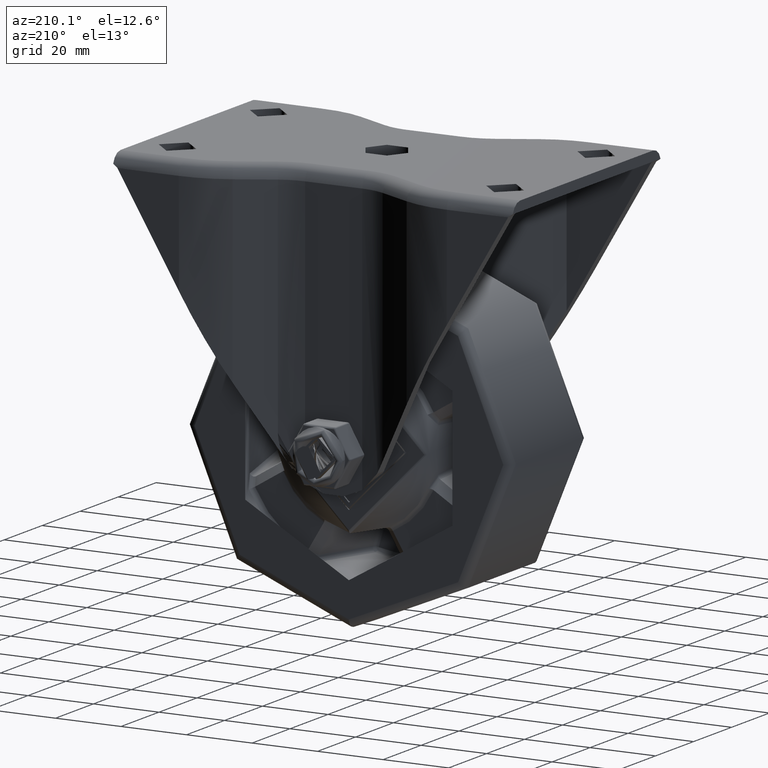
[diagram: clean part render]
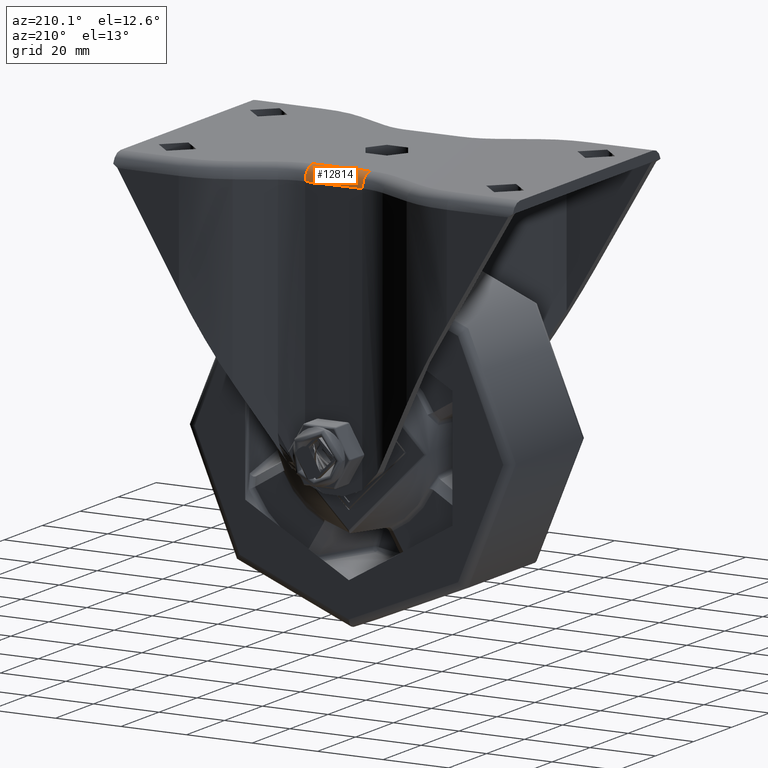
[diagram: same view with one face highlighted and labeled with its STEP entity id]
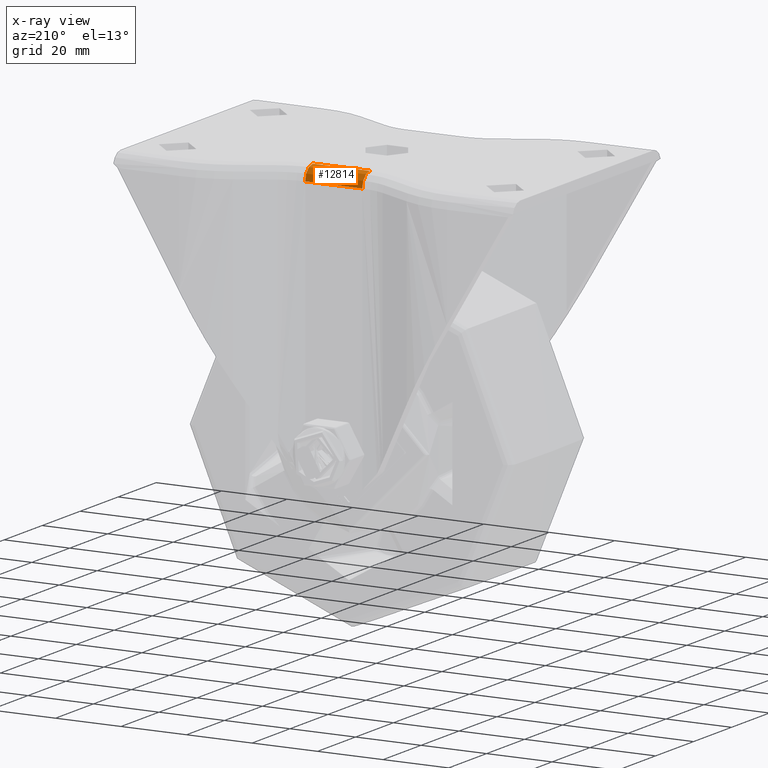
[diagram: x-ray of the same camera — body ghosted, the highlighted face saturated]
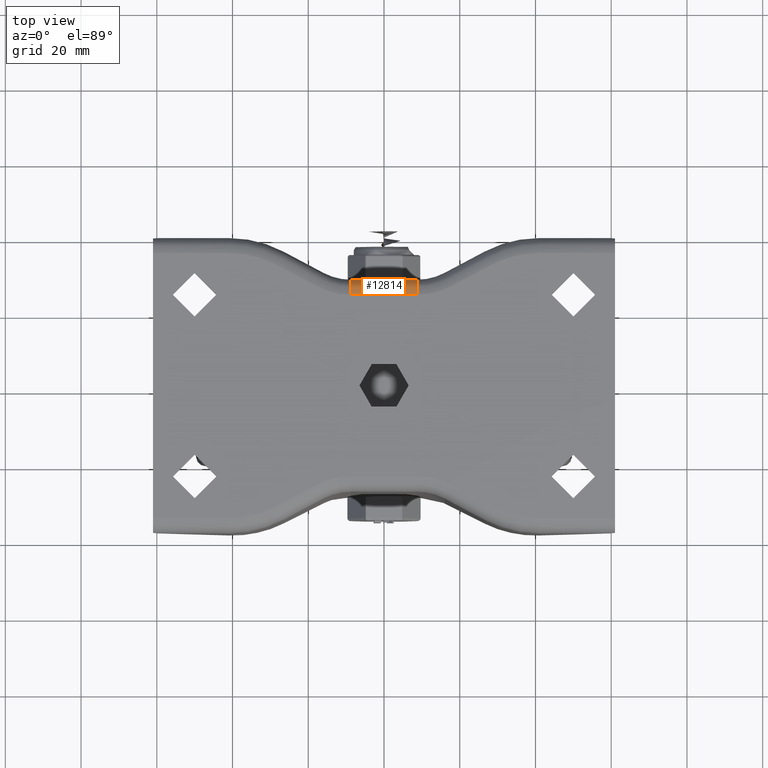
[diagram: same view with one face highlighted and labeled with its STEP entity id]
A machine part, auxiliary view. The second image highlights one B-rep face of the part: STEP entity #12814.
The next image is the same camera in x-ray: the body ghosted, the highlighted face saturated — about 0% of this face is hidden behind the body in this view.
A second angle (top view) of the same face is appended — the face is thin or edge-on in the first view.
In plain terms, the highlighted cylindrical surface (edge-blend (fillet) strip) has radius 4 mm, axis along (-1, 0, 0).
Its self-contained STEP definition (entity closure, byte-faithful):
#1368=CYLINDRICAL_SURFACE('',#13856,4.);
#1669=CIRCLE('',#13855,4.);
#1670=CIRCLE('',#13857,4.);
#2261=FACE_OUTER_BOUND('',#3090,.T.);
#3090=EDGE_LOOP('',(#8759,#8760,#8761,#8762));
#4057=LINE('',#18296,#4755);
#4070=LINE('',#18353,#4768);
#4755=VECTOR('',#15137,10.);
#4768=VECTOR('',#15194,10.);
#5456=VERTEX_POINT('',#18291);
#5457=VERTEX_POINT('',#18295);
#5470=VERTEX_POINT('',#18348);
#5471=VERTEX_POINT('',#18352);
#6714=EDGE_CURVE('',#5456,#5457,#4057,.T.);
#6738=EDGE_CURVE('',#5470,#5456,#1669,.T.);
#6739=EDGE_CURVE('',#5471,#5470,#4070,.T.);
#6740=EDGE_CURVE('',#5471,#5457,#1670,.T.);
#8759=ORIENTED_EDGE('',*,*,#6738,.F.);
#8760=ORIENTED_EDGE('',*,*,#6739,.F.);
#8761=ORIENTED_EDGE('',*,*,#6740,.T.);
#8762=ORIENTED_EDGE('',*,*,#6714,.F.);
#12814=ADVANCED_FACE('',(#2261),#1368,.T.);
#13855=AXIS2_PLACEMENT_3D('',#18350,#15190,#15191);
#13856=AXIS2_PLACEMENT_3D('',#18351,#15192,#15193);
#13857=AXIS2_PLACEMENT_3D('',#18354,#15195,#15196);
#15137=DIRECTION('',(1.,0.,0.));
#15190=DIRECTION('center_axis',(-1.,0.,0.));
#15191=DIRECTION('ref_axis',(0.,0.,1.));
#15192=DIRECTION('center_axis',(-1.,0.,0.));
#15193=DIRECTION('ref_axis',(0.,0.707106781186548,0.707106781186548));
#15194=DIRECTION('',(-1.,0.,0.));
#15195=DIRECTION('center_axis',(-1.,0.,0.));
#15196=DIRECTION('ref_axis',(0.,0.,1.));
#18291=CARTESIAN_POINT('',(472.324032640299,-22.1950614001456,-4.));
#18295=CARTESIAN_POINT('',(489.762993920606,-22.1950614001456,-4.));
#18296=CARTESIAN_POINT('',(460.605233335578,-22.1950614001456,-4.));
#18348=CARTESIAN_POINT('',(472.324032640299,-26.1950614001456,0.));
#18350=CARTESIAN_POINT('Origin',(472.324032640299,-26.1950614001456,-4.));
#18351=CARTESIAN_POINT('Origin',(460.605233335578,-26.1950614001456,-4.));
#18352=CARTESIAN_POINT('',(489.762993920606,-26.1950614001456,0.));
#18353=CARTESIAN_POINT('',(460.605233335578,-26.1950614001456,0.));
#18354=CARTESIAN_POINT('Origin',(489.762993920606,-26.1950614001456,-4.));